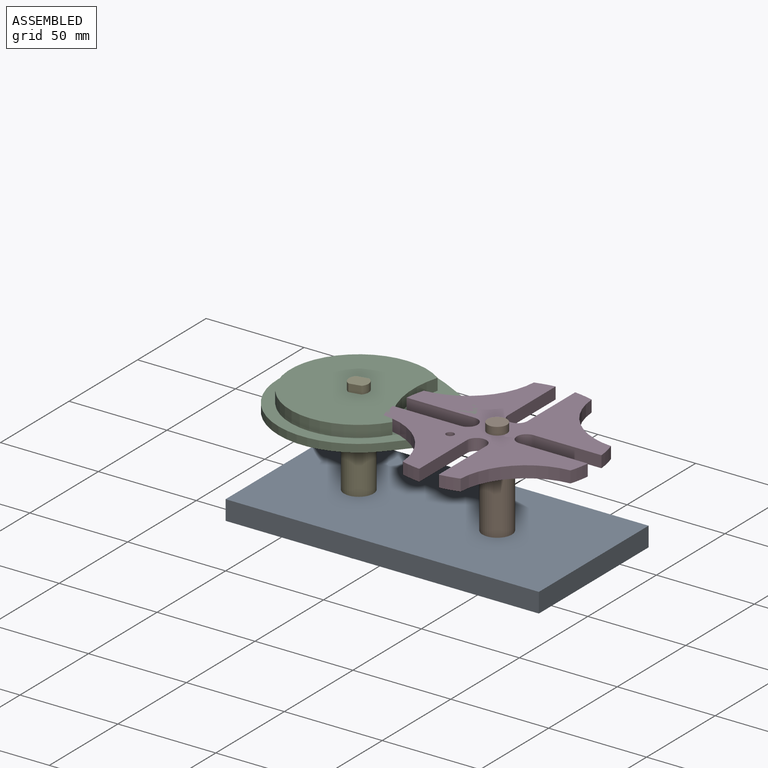
[diagram: assembled view]
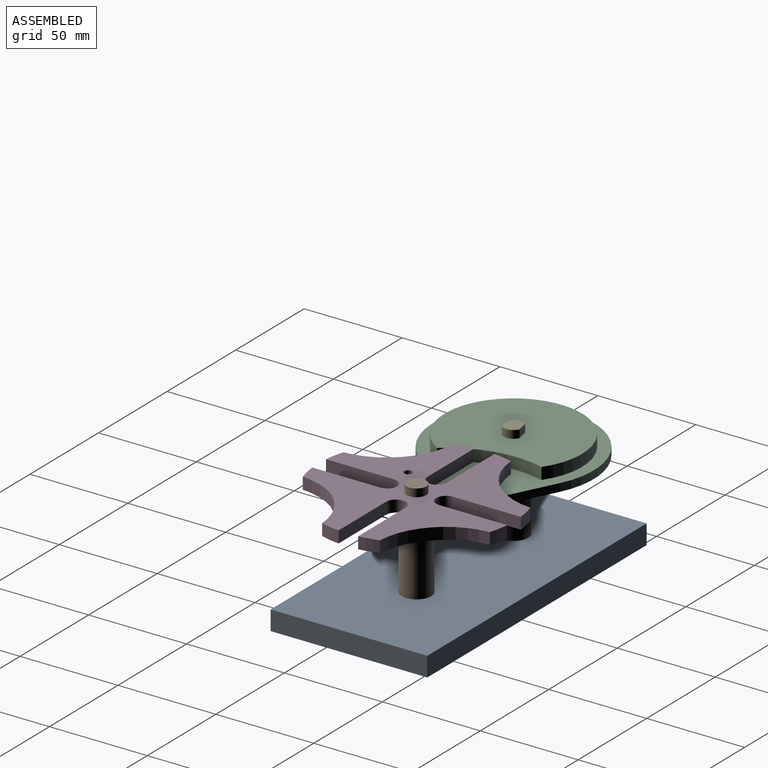
[diagram: assembled view, second angle]
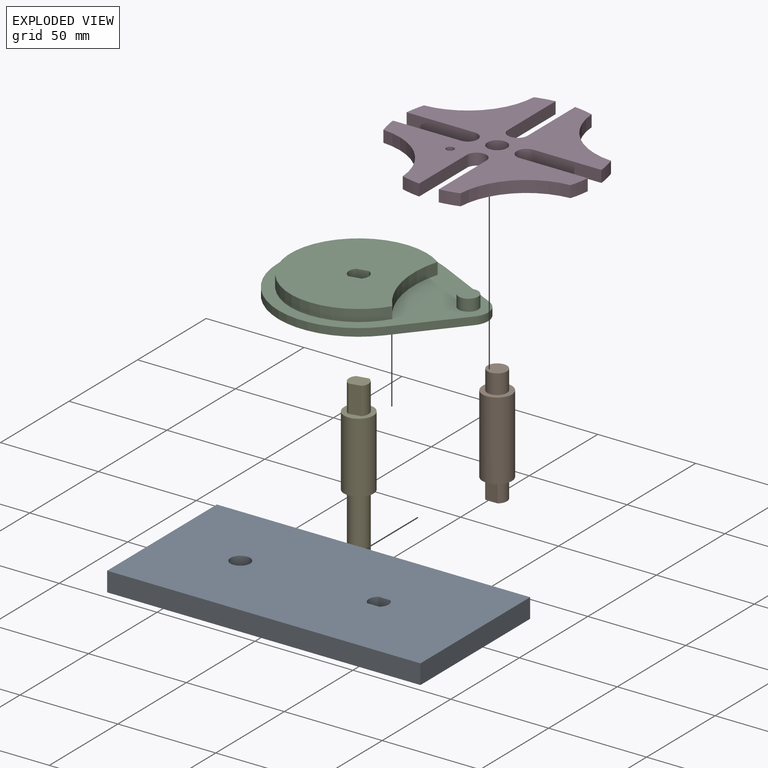
[diagram: exploded view]
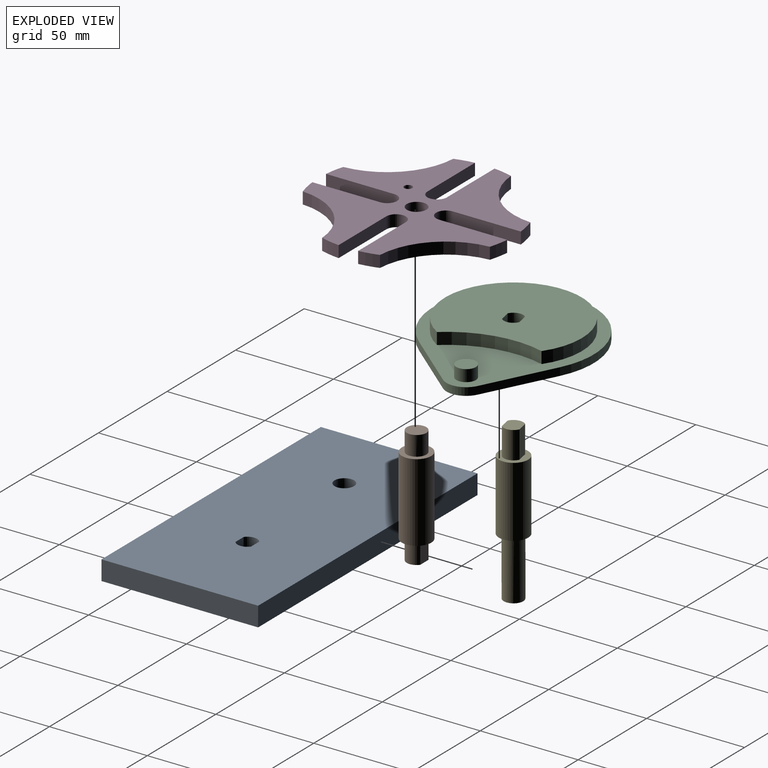
[diagram: exploded view, second angle]
ASSEMBLY  parts=5 mates=4
PART A: 11 faces, bbox 160x80x10 mm
  f0: plane 160x10mm, normal (0,1,0), area 1600mm2, adj f1,f8,f9,f10
  f1: plane 80x10mm, normal (-1,0,0), area 800mm2, adj f0,f2,f9,f10
  f2: plane 160x10mm, normal (0,-1,0), area 1600mm2, adj f1,f8,f9,f10
  f3: cylinder r=5mm len=10mm, axis (0,0,-1), area 92.7mm2, adj f4,f6,f9,f10
  f4: plane 10x6mm, normal (0,-1,0), area 60mm2, adj f3,f5,f9,f10
  f5: cylinder r=5mm len=10mm, axis (0,0,-1), area 92.7mm2, adj f4,f6,f9,f10
  f6: plane 10x6mm, normal (0,1,0), area 60mm2, adj f3,f5,f9,f10
  f7: cylinder r=5mm len=10mm, axis (0,0,-1), area 314.2mm2, adj f9,f10
  f8: plane 80x10mm, normal (1,0,0), area 800mm2, adj f0,f2,f9,f10
  f9: plane 160x80mm, normal (0,0,1), area 12651.1mm2, adj f0,f1,f2,f3,f4,f5,f6,f7
  f10: plane 160x80mm, normal (0,0,-1), area 12651.1mm2, adj f0,f1,f2,f3,f4,f5,f6,f7
PART B: 10 faces, bbox 60x15x15 mm
  f0: plane 10x8mm, normal (-1,0,0), area 70.4mm2, adj f1,f2,f8,f9
  f1: cylinder r=5mm len=10mm, axis (-1,0,0), area 92.7mm2, adj f0,f7,f8,f9
  f2: cylinder r=5mm len=10mm, axis (-1,0,0), area 92.7mm2, adj f0,f7,f8,f9
  f3: cylinder r=5mm len=10mm, axis (-1,0,0), area 314.2mm2, adj f4,f6
  f4: plane 10x10mm, normal (1,0,0), area 78.5mm2, adj f3
  f5: cylinder r=7.5mm len=40mm, axis (-1,0,0), area 1885mm2, adj f6,f7
  f6: plane 15x15mm, normal (1,0,0), area 98.2mm2, adj f3,f5
  f7: plane 15x15mm, normal (-1,0,0), area 106.3mm2, adj f1,f2,f5,f8,f9
  f8: plane 10x6mm, normal (0,-1,0), area 60mm2, adj f0,f1,f2,f7
  f9: plane 10x6mm, normal (0,1,0), area 60mm2, adj f0,f1,f2,f7
PART C: 15 faces, bbox 101x82x10 mm
  f0: plane 101x82mm, normal (0,0,1), area 2426.4mm2, adj f1,f2,f3,f4,f6,f7,f9
  f1: plane 30.78x24.32mm, normal (0.62,-0.78,0), area 156.9mm2, adj f0,f2,f4,f5
  f2: cylinder r=10mm len=15.69mm, axis (0,0,-1), area 72.2mm2, adj f0,f1,f3,f5
  f3: plane 30.78x24.32mm, normal (0.62,0.78,0), area 156.9mm2, adj f0,f2,f4,f5
  f4: cylinder r=41mm len=82mm, axis (0,0,-1), area 734.6mm2, adj f0,f1,f3,f5
  f5: plane 101x82mm, normal (0,0,-1), area 5785.2mm2, adj f1,f2,f3,f4,f11,f12,f13,f14
  f6: cylinder r=51mm len=47.69mm, axis (0,0,-1), area 297.8mm2, adj f0,f7,f8
  f7: cylinder r=35mm len=70mm, axis (0,0,-1), area 1004.6mm2, adj f0,f6,f8
  f8: plane 70x60.62mm, normal (0,0,1), area 3280.3mm2, adj f6,f7,f11,f12,f13,f14
  f9: cylinder r=5mm len=10mm, axis (0,0,-1), area 188.5mm2, adj f0,f10
  f10: plane 10x10mm, normal (0,0,1), area 78.5mm2, adj f9
  f11: plane 10x6mm, normal (0,1,0), area 60mm2, adj f5,f8,f12,f14
  f12: cylinder r=5mm len=10mm, axis (0,0,1), area 92.7mm2, adj f5,f8,f11,f13
  f13: plane 10x6mm, normal (0,-1,0), area 60mm2, adj f5,f8,f12,f14
  f14: cylinder r=5mm len=10mm, axis (0,0,1), area 92.7mm2, adj f5,f8,f11,f13
PART D: 28 faces, bbox 99.5x99.5x6 mm
  f0: cylinder r=50mm len=9.76mm, axis (0,0,-1), area 59.9mm2, adj f8,f9,f23,f25
  f1: cylinder r=50mm len=9.76mm, axis (0,0,-1), area 59.9mm2, adj f8,f9,f13,f24
  f2: cylinder r=50mm len=9.76mm, axis (0,0,-1), area 59.9mm2, adj f8,f9,f19,f21
  f3: cylinder r=50mm len=9.76mm, axis (0,0,-1), area 59.9mm2, adj f8,f9,f20,f25
  f4: cylinder r=50mm len=9.76mm, axis (0,0,-1), area 59.9mm2, adj f8,f9,f15,f17
  f5: cylinder r=50mm len=9.76mm, axis (0,0,-1), area 59.9mm2, adj f8,f9,f16,f21
  f6: cylinder r=50mm len=9.76mm, axis (0,0,-1), area 59.9mm2, adj f8,f9,f11,f13
  f7: cylinder r=50mm len=9.76mm, axis (0,0,-1), area 59.9mm2, adj f8,f9,f12,f17
  f8: plane 99.5x99.5mm, normal (0,0,1), area 4352.2mm2, adj f0,f1,f2,f3,f4,f5,f6,f7
  f9: plane 99.5x99.5mm, normal (0,0,-1), area 4352.2mm2, adj f0,f1,f2,f3,f4,f5,f6,f7
  f10: cylinder r=5mm len=10mm, axis (0,0,1), area 94.2mm2, adj f8,f9,f11,f12
  f11: plane 34.75x6mm, normal (0,-1,0), area 208.5mm2, adj f6,f8,f9,f10
  f12: plane 34.75x6mm, normal (0,1,0), area 208.5mm2, adj f7,f8,f9,f10
  f13: cylinder r=35.3mm len=33.01mm, axis (0,0,1), area 306mm2, adj f1,f6,f8,f9
  f14: cylinder r=5mm len=10mm, axis (0,0,1), area 94.2mm2, adj f8,f9,f15,f16
  f15: plane 34.75x6mm, normal (1,0,0), area 208.5mm2, adj f4,f8,f9,f14
  f16: plane 34.75x6mm, normal (-1,0,0), area 208.5mm2, adj f5,f8,f9,f14
  f17: cylinder r=35.3mm len=33.01mm, axis (0,0,1), area 306mm2, adj f4,f7,f8,f9
  f18: cylinder r=5mm len=10mm, axis (0,0,1), area 94.2mm2, adj f8,f9,f19,f20
  f19: plane 34.75x6mm, normal (0,1,0), area 208.5mm2, adj f2,f8,f9,f18
  f20: plane 34.75x6mm, normal (0,-1,0), area 208.5mm2, adj f3,f8,f9,f18
  f21: cylinder r=35.3mm len=33.01mm, axis (0,0,1), area 306mm2, adj f2,f5,f8,f9
  f22: cylinder r=5mm len=10mm, axis (0,0,1), area 94.2mm2, adj f8,f9,f23,f24
  f23: plane 34.75x6mm, normal (-1,0,0), area 208.5mm2, adj f0,f8,f9,f22
  f24: plane 34.75x6mm, normal (1,0,0), area 208.5mm2, adj f1,f8,f9,f22
  f25: cylinder r=35.3mm len=33.01mm, axis (0,0,1), area 306mm2, adj f0,f3,f8,f9
  f26: cylinder r=5mm len=10mm, axis (0,0,1), area 188.5mm2, adj f8,f9
  f27: cylinder r=2mm len=6mm, axis (0,0,1), area 75.4mm2, adj f8,f9
PART E: 10 faces, bbox 80x15x15 mm
  f0: plane 10x8mm, normal (-1,0,0), area 70.4mm2, adj f1,f2,f8,f9
  f1: cylinder r=5mm len=14mm, axis (-1,0,0), area 129.8mm2, adj f0,f7,f8,f9
  f2: cylinder r=5mm len=14mm, axis (-1,0,0), area 129.8mm2, adj f0,f7,f8,f9
  f3: cylinder r=5mm len=30mm, axis (-1,0,0), area 942.5mm2, adj f4,f6
  f4: plane 10x10mm, normal (1,0,0), area 78.5mm2, adj f3
  f5: cylinder r=7.5mm len=36mm, axis (-1,0,0), area 1696.5mm2, adj f6,f7
  f6: plane 15x15mm, normal (1,0,0), area 98.2mm2, adj f3,f5
  f7: plane 15x15mm, normal (-1,0,0), area 106.3mm2, adj f1,f2,f5,f8,f9
  f8: plane 14x6mm, normal (0,-1,0), area 84mm2, adj f0,f1,f2,f7
  f9: plane 14x6mm, normal (0,1,0), area 84mm2, adj f0,f1,f2,f7
PLACE A at identity fixed
PLACE B rot(axis=(0,-1,0),90deg) t=(110.7,40,10)mm
PLACE C rot(axis=(0,0,1),11.6deg) t=(40,40,46)mm
PLACE D rot(axis=(0,0,1),90deg) t=(110.7,40,50)mm
PLACE E rot(axis=(0.71,0.07,-0.71),171.8deg) t=(40,40,60)mm
MATE revolute E.f1 <-> A.f7  axis (0,0,-1) through (40,40,10)mm
MATE fastened B.f7 <-> A.f9  axis (0,0,-1) through (110.7,36,10)mm
MATE revolute D.f0 <-> B.f1  axis (0,0,-1) through (110.7,40,50)mm
MATE fastened C.f4 <-> E.f1  axis (0,0,-1) through (40,40,46)mm
